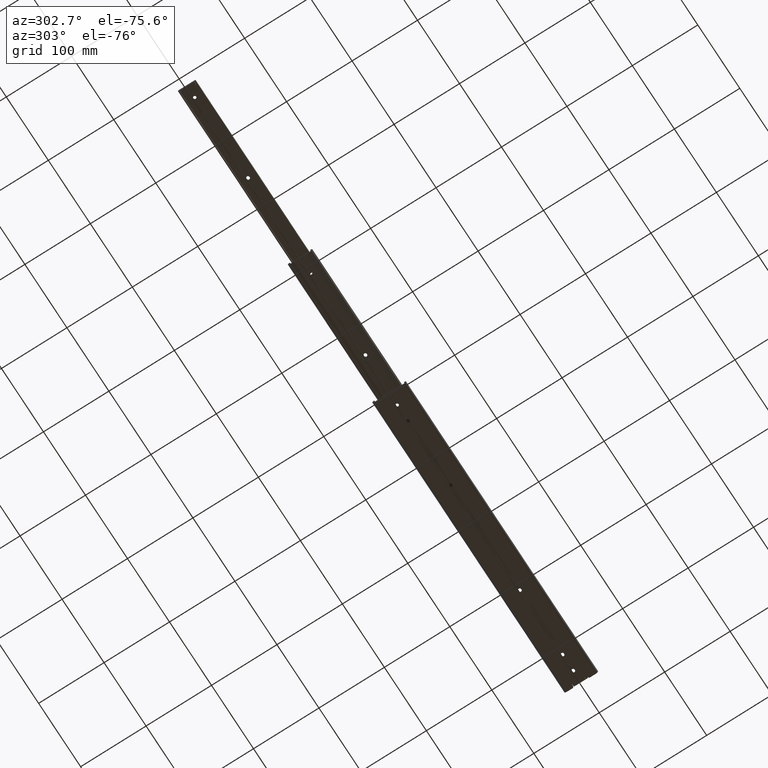
[diagram: clean part render]
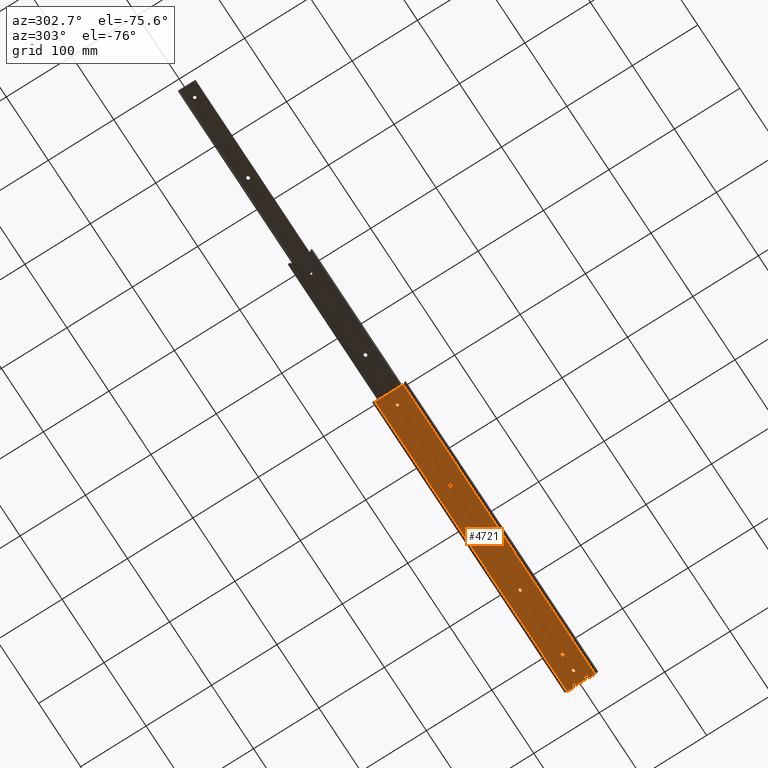
[diagram: same view with one face highlighted and labeled with its STEP entity id]
A machine part, auxiliary view. The second image highlights one B-rep face of the part: STEP entity #4721.
In plain terms, the highlighted planar face has unit normal (0, 0, 1).
Its self-contained STEP definition (entity closure, byte-faithful):
#17 = VERTEX_POINT ( 'NONE', #6637 ) ;
#88 = VECTOR ( 'NONE', #699, 1000.000000000000000 ) ;
#93 = CARTESIAN_POINT ( 'NONE',  ( 145.6999999999999900, -2.249999999999957800, 0.0000000000000000000 ) ) ;
#105 = ORIENTED_EDGE ( 'NONE', *, *, #4185, .F. ) ;
#106 = CARTESIAN_POINT ( 'NONE',  ( 456.3000000000000100, 7.349999999999999600, 0.0000000000000000000 ) ) ;
#126 = AXIS2_PLACEMENT_3D ( 'NONE', #6629, #2980, #7245 ) ;
#131 = CARTESIAN_POINT ( 'NONE',  ( 456.3000000000000100, 7.349999999999999600, 0.0000000000000000000 ) ) ;
#132 = CARTESIAN_POINT ( 'NONE',  ( 44.90000000000000600, 5.374174154884625500E-015, 0.0000000000000000000 ) ) ;
#143 = EDGE_CURVE ( 'NONE', #17, #3755, #4210, .T. ) ;
#161 = AXIS2_PLACEMENT_3D ( 'NONE', #7686, #4022, #448 ) ;
#204 = ORIENTED_EDGE ( 'NONE', *, *, #590, .T. ) ;
#217 = CIRCLE ( 'NONE', #7477, 2.249999999999974200 ) ;
#254 = CARTESIAN_POINT ( 'NONE',  ( 438.6000000000000800, 2.250000000000000000, 0.0000000000000000000 ) ) ;
#267 = DIRECTION ( 'NONE',  ( 1.000000000000000000, 0.0000000000000000000, 0.0000000000000000000 ) ) ;
#272 = ORIENTED_EDGE ( 'NONE', *, *, #7627, .T. ) ;
#300 = VERTEX_POINT ( 'NONE', #3301 ) ;
#314 = VERTEX_POINT ( 'NONE', #930 ) ;
#324 = CIRCLE ( 'NONE', #5216, 2.249999999999974200 ) ;
#448 = DIRECTION ( 'NONE',  ( 1.000000000000000000, 0.0000000000000000000, 0.0000000000000000000 ) ) ;
#452 = EDGE_CURVE ( 'NONE', #4040, #1603, #1012, .T. ) ;
#510 = ORIENTED_EDGE ( 'NONE', *, *, #6957, .T. ) ;
#524 = CIRCLE ( 'NONE', #3972, 2.249999999999998700 ) ;
#539 = CARTESIAN_POINT ( 'NONE',  ( 143.4499999999999900, 5.324886414075671300E-014, 0.0000000000000000000 ) ) ;
#552 = VECTOR ( 'NONE', #7526, 1000.000000000000000 ) ;
#572 = CARTESIAN_POINT ( 'NONE',  ( 453.7999999999999500, -7.349999999999999600, 0.0000000000000000000 ) ) ;
#590 = EDGE_CURVE ( 'NONE', #1445, #3558, #4867, .T. ) ;
#592 = VECTOR ( 'NONE', #7134, 1000.000000000000000 ) ;
#616 = EDGE_CURVE ( 'NONE', #5094, #6024, #4669, .T. ) ;
#629 = CIRCLE ( 'NONE', #6483, 2.249999999999974200 ) ;
#653 = EDGE_CURVE ( 'NONE', #1034, #7276, #6102, .T. ) ;
#681 = ORIENTED_EDGE ( 'NONE', *, *, #4697, .T. ) ;
#699 = DIRECTION ( 'NONE',  ( 1.000000000000000000, 0.0000000000000000000, 0.0000000000000000000 ) ) ;
#703 = CARTESIAN_POINT ( 'NONE',  ( 145.6999999999999900, -2.249999999999957800, 0.0000000000000000000 ) ) ;
#712 = CIRCLE ( 'NONE', #2782, 2.000000000000001800 ) ;
#726 = DIRECTION ( 'NONE',  ( 1.000000000000000000, 0.0000000000000000000, 0.0000000000000000000 ) ) ;
#731 = EDGE_CURVE ( 'NONE', #3316, #2362, #2509, .T. ) ;
#761 = DIRECTION ( 'NONE',  ( 1.000000000000000000, 0.0000000000000000000, 0.0000000000000000000 ) ) ;
#764 = EDGE_CURVE ( 'NONE', #2076, #1057, #3718, .T. ) ;
#854 = VERTEX_POINT ( 'NONE', #5523 ) ;
#888 = EDGE_CURVE ( 'NONE', #3684, #1445, #2959, .T. ) ;
#906 = AXIS2_PLACEMENT_3D ( 'NONE', #2619, #6864, #3212 ) ;
#923 = DIRECTION ( 'NONE',  ( 0.0000000000000000000, 0.0000000000000000000, 1.000000000000000000 ) ) ;
#930 = CARTESIAN_POINT ( 'NONE',  ( 455.1999999999999900, 11.35000000000000100, 0.0000000000000000000 ) ) ;
#935 = VERTEX_POINT ( 'NONE', #1729 ) ;
#938 = ORIENTED_EDGE ( 'NONE', *, *, #5026, .T. ) ;
#942 = ORIENTED_EDGE ( 'NONE', *, *, #1948, .F. ) ;
#944 = ORIENTED_EDGE ( 'NONE', *, *, #7637, .T. ) ;
#985 = ORIENTED_EDGE ( 'NONE', *, *, #653, .T. ) ;
#1011 = CARTESIAN_POINT ( 'NONE',  ( 457.1999999999999900, -13.35000000000000100, 0.0000000000000000000 ) ) ;
#1012 = CIRCLE ( 'NONE', #126, 2.249999999999998700 ) ;
#1024 = VERTEX_POINT ( 'NONE', #703 ) ;
#1034 = VERTEX_POINT ( 'NONE', #4708 ) ;
#1036 = CARTESIAN_POINT ( 'NONE',  ( 457.1999999999999900, 0.0000000000000000000, 0.0000000000000000000 ) ) ;
#1050 = DIRECTION ( 'NONE',  ( -1.000000000000000000, -0.0000000000000000000, -0.0000000000000000000 ) ) ;
#1057 = VERTEX_POINT ( 'NONE', #7614 ) ;
#1063 = EDGE_LOOP ( 'NONE', ( #2715, #5754, #3600, #1910, #7266 ) ) ;
#1088 = DIRECTION ( 'NONE',  ( 0.0000000000000000000, 0.0000000000000000000, 1.000000000000000000 ) ) ;
#1142 = ORIENTED_EDGE ( 'NONE', *, *, #1273, .T. ) ;
#1149 = EDGE_CURVE ( 'NONE', #6052, #6747, #2672, .T. ) ;
#1179 = VECTOR ( 'NONE', #2752, 1000.000000000000000 ) ;
#1183 = FACE_BOUND ( 'NONE', #5389, .T. ) ;
#1204 = DIRECTION ( 'NONE',  ( -1.000000000000000000, 1.020425574103983300E-015, 0.0000000000000000000 ) ) ;
#1229 = DIRECTION ( 'NONE',  ( 0.0000000000000000000, 0.0000000000000000000, 1.000000000000000000 ) ) ;
#1231 = VERTEX_POINT ( 'NONE', #1485 ) ;
#1236 = DIRECTION ( 'NONE',  ( -1.000000000000000000, -1.020425574103983300E-015, 0.0000000000000000000 ) ) ;
#1247 = ORIENTED_EDGE ( 'NONE', *, *, #2847, .T. ) ;
#1273 = EDGE_CURVE ( 'NONE', #3581, #2904, #6682, .T. ) ;
#1326 = ORIENTED_EDGE ( 'NONE', *, *, #888, .T. ) ;
#1360 = DIRECTION ( 'NONE',  ( 0.0000000000000000000, 1.000000000000000000, 0.0000000000000000000 ) ) ;
#1365 = CARTESIAN_POINT ( 'NONE',  ( 412.3999999999999200, 9.192473447950264600E-014, 0.0000000000000000000 ) ) ;
#1374 = CARTESIAN_POINT ( 'NONE',  ( 16.85000000000000500, 0.0000000000000000000, 0.0000000000000000000 ) ) ;
#1375 = ORIENTED_EDGE ( 'NONE', *, *, #6494, .F. ) ;
#1389 = DIRECTION ( 'NONE',  ( 0.0000000000000000000, 0.0000000000000000000, 1.000000000000000000 ) ) ;
#1408 = DIRECTION ( 'NONE',  ( -0.0000000000000000000, -0.0000000000000000000, -1.000000000000000000 ) ) ;
#1418 = VERTEX_POINT ( 'NONE', #6123 ) ;
#1442 = AXIS2_PLACEMENT_3D ( 'NONE', #132, #4310, #726 ) ;
#1445 = VERTEX_POINT ( 'NONE', #106 ) ;
#1464 = CARTESIAN_POINT ( 'NONE',  ( 453.7999999999999500, -9.350000000000001400, 0.0000000000000000000 ) ) ;
#1484 = DIRECTION ( 'NONE',  ( 1.000000000000000000, 2.551063935260000100E-016, 0.0000000000000000000 ) ) ;
#1485 = CARTESIAN_POINT ( 'NONE',  ( 0.0000000000000000000, -21.29985872422196600, 8.673617379884035500E-016 ) ) ;
#1486 = VECTOR ( 'NONE', #1360, 1000.000000000000000 ) ;
#1508 = CARTESIAN_POINT ( 'NONE',  ( 453.7999999999999500, 7.350000000000000500, 0.0000000000000000000 ) ) ;
#1516 = CARTESIAN_POINT ( 'NONE',  ( 44.09999999999999400, 5.325188282918731300E-015, 0.0000000000000000000 ) ) ;
#1546 = CARTESIAN_POINT ( 'NONE',  ( 308.5500000000000100, 1.136044972015125300E-013, 0.0000000000000000000 ) ) ;
#1547 = EDGE_CURVE ( 'NONE', #6128, #1034, #6378, .T. ) ;
#1555 = VECTOR ( 'NONE', #1204, 1000.000000000000000 ) ;
#1602 = VERTEX_POINT ( 'NONE', #2859 ) ;
#1603 = VERTEX_POINT ( 'NONE', #1374 ) ;
#1631 = VECTOR ( 'NONE', #1236, 1000.000000000000000 ) ;
#1635 = DIRECTION ( 'NONE',  ( 0.0000000000000000000, 1.000000000000000000, 0.0000000000000000000 ) ) ;
#1646 = CARTESIAN_POINT ( 'NONE',  ( 311.6000000000000800, -2.249999999999886300, 0.0000000000000000000 ) ) ;
#1672 = VECTOR ( 'NONE', #5525, 1000.000000000000000 ) ;
#1729 = CARTESIAN_POINT ( 'NONE',  ( 437.7999999999999500, -2.250000000000000000, 0.0000000000000000000 ) ) ;
#1793 = CARTESIAN_POINT ( 'NONE',  ( 44.90000000000000600, 2.250000000000000000, 0.0000000000000000000 ) ) ;
#1807 = CARTESIAN_POINT ( 'NONE',  ( 412.3999999999999200, -2.249999999999951200, 0.0000000000000000000 ) ) ;
#1825 = ORIENTED_EDGE ( 'NONE', *, *, #6622, .T. ) ;
#1903 = CARTESIAN_POINT ( 'NONE',  ( 453.7999999999999500, -9.350000000000001400, 0.0000000000000000000 ) ) ;
#1910 = ORIENTED_EDGE ( 'NONE', *, *, #3696, .T. ) ;
#1927 = DIRECTION ( 'NONE',  ( 0.0000000000000000000, 0.0000000000000000000, 1.000000000000000000 ) ) ;
#1928 = CARTESIAN_POINT ( 'NONE',  ( 413.1999999999999900, 9.197372035146854300E-014, 0.0000000000000000000 ) ) ;
#1929 = VERTEX_POINT ( 'NONE', #4058 ) ;
#1948 = EDGE_CURVE ( 'NONE', #6995, #3316, #5514, .T. ) ;
#1980 = CARTESIAN_POINT ( 'NONE',  ( 44.09999999999999400, 2.250000000000000000, 0.0000000000000000000 ) ) ;
#2040 = DIRECTION ( 'NONE',  ( 0.0000000000000000000, 0.0000000000000000000, 1.000000000000000000 ) ) ;
#2048 = DIRECTION ( 'NONE',  ( 0.0000000000000000000, 0.0000000000000000000, 1.000000000000000000 ) ) ;
#2053 = VECTOR ( 'NONE', #3611, 1000.000000000000000 ) ;
#2061 = DIRECTION ( 'NONE',  ( 1.000000000000000000, 0.0000000000000000000, 0.0000000000000000000 ) ) ;
#2076 = VERTEX_POINT ( 'NONE', #2783 ) ;
#2077 = VERTEX_POINT ( 'NONE', #3044 ) ;
#2082 = DIRECTION ( 'NONE',  ( 0.0000000000000000000, 0.0000000000000000000, 1.000000000000000000 ) ) ;
#2118 = CARTESIAN_POINT ( 'NONE',  ( 310.7999999999999500, 1.136044972015125300E-013, 0.0000000000000000000 ) ) ;
#2124 = DIRECTION ( 'NONE',  ( 1.000000000000000000, 0.0000000000000000000, 0.0000000000000000000 ) ) ;
#2201 = AXIS2_PLACEMENT_3D ( 'NONE', #1516, #5704, #2124 ) ;
#2240 = DIRECTION ( 'NONE',  ( 0.0000000000000000000, 0.0000000000000000000, 1.000000000000000000 ) ) ;
#2268 = CARTESIAN_POINT ( 'NONE',  ( 412.3999999999999200, -2.249999999999951200, 0.0000000000000000000 ) ) ;
#2286 = ORIENTED_EDGE ( 'NONE', *, *, #1547, .T. ) ;
#2304 = CARTESIAN_POINT ( 'NONE',  ( 451.7999999999999500, -9.350000000000001400, 0.0000000000000000000 ) ) ;
#2333 = LINE ( 'NONE', #6916, #552 ) ;
#2348 = CARTESIAN_POINT ( 'NONE',  ( 455.1999999999999900, -11.35000000000000100, 0.0000000000000000000 ) ) ;
#2362 = VERTEX_POINT ( 'NONE', #6581 ) ;
#2371 = VERTEX_POINT ( 'NONE', #7811 ) ;
#2374 = ORIENTED_EDGE ( 'NONE', *, *, #2639, .T. ) ;
#2376 = LINE ( 'NONE', #6520, #592 ) ;
#2377 = VERTEX_POINT ( 'NONE', #572 ) ;
#2391 = CARTESIAN_POINT ( 'NONE',  ( 456.3000000000000100, -7.349999999999999600, 0.0000000000000000000 ) ) ;
#2424 = CARTESIAN_POINT ( 'NONE',  ( 44.09999999999999400, 5.325188282918731300E-015, 0.0000000000000000000 ) ) ;
#2441 = AXIS2_PLACEMENT_3D ( 'NONE', #1903, #6106, #2485 ) ;
#2472 = ORIENTED_EDGE ( 'NONE', *, *, #2773, .T. ) ;
#2485 = DIRECTION ( 'NONE',  ( 1.000000000000000000, 0.0000000000000000000, 0.0000000000000000000 ) ) ;
#2509 = LINE ( 'NONE', #3644, #7150 ) ;
#2515 = DIRECTION ( 'NONE',  ( 1.000000000000000000, 0.0000000000000000000, 0.0000000000000000000 ) ) ;
#2619 = CARTESIAN_POINT ( 'NONE',  ( 311.6000000000000200, 1.136534830734784300E-013, 0.0000000000000000000 ) ) ;
#2639 = EDGE_CURVE ( 'NONE', #2911, #935, #3415, .T. ) ;
#2672 = LINE ( 'NONE', #1807, #4078 ) ;
#2687 = DIRECTION ( 'NONE',  ( 1.000000000000000000, 0.0000000000000000000, 0.0000000000000000000 ) ) ;
#2693 = CIRCLE ( 'NONE', #161, 2.000000000000001800 ) ;
#2715 = ORIENTED_EDGE ( 'NONE', *, *, #143, .T. ) ;
#2733 = EDGE_CURVE ( 'NONE', #1603, #4040, #524, .T. ) ;
#2751 = FACE_OUTER_BOUND ( 'NONE', #7553, .T. ) ;
#2752 = DIRECTION ( 'NONE',  ( 1.000000000000000000, 0.0000000000000000000, 0.0000000000000000000 ) ) ;
#2773 = EDGE_CURVE ( 'NONE', #3633, #3684, #4941, .T. ) ;
#2782 = AXIS2_PLACEMENT_3D ( 'NONE', #1464, #5648, #2061 ) ;
#2783 = CARTESIAN_POINT ( 'NONE',  ( 41.84999999999999400, 5.325188282918731300E-015, 0.0000000000000000000 ) ) ;
#2788 = CARTESIAN_POINT ( 'NONE',  ( 457.1999999999999900, -21.29985872422196600, 8.673617379884035500E-016 ) ) ;
#2847 = EDGE_CURVE ( 'NONE', #1057, #5862, #5975, .T. ) ;
#2859 = CARTESIAN_POINT ( 'NONE',  ( 310.7999999999999500, 2.250000000000082600, 0.0000000000000000000 ) ) ;
#2904 = VERTEX_POINT ( 'NONE', #4634 ) ;
#2911 = VERTEX_POINT ( 'NONE', #4008 ) ;
#2944 = FACE_BOUND ( 'NONE', #3573, .T. ) ;
#2959 = LINE ( 'NONE', #1508, #7818 ) ;
#2980 = DIRECTION ( 'NONE',  ( 0.0000000000000000000, 0.0000000000000000000, 1.000000000000000000 ) ) ;
#3018 = ORIENTED_EDGE ( 'NONE', *, *, #7380, .T. ) ;
#3021 = CARTESIAN_POINT ( 'NONE',  ( 451.7999999999999500, 9.350000000000001400, 0.0000000000000000000 ) ) ;
#3044 = CARTESIAN_POINT ( 'NONE',  ( 437.7999999999999500, 2.250000000000000000, 0.0000000000000000000 ) ) ;
#3046 = LINE ( 'NONE', #7646, #3421 ) ;
#3075 = EDGE_LOOP ( 'NONE', ( #985, #4973, #4733, #510, #2286 ) ) ;
#3134 = CIRCLE ( 'NONE', #3228, 2.249999999999974200 ) ;
#3147 = VECTOR ( 'NONE', #5371, 1000.000000000000000 ) ;
#3155 = AXIS2_PLACEMENT_3D ( 'NONE', #2424, #7136, #5921 ) ;
#3205 = LINE ( 'NONE', #4799, #1631 ) ;
#3207 = EDGE_CURVE ( 'NONE', #5862, #3581, #4934, .T. ) ;
#3212 = DIRECTION ( 'NONE',  ( 1.000000000000000000, 0.0000000000000000000, 0.0000000000000000000 ) ) ;
#3228 = AXIS2_PLACEMENT_3D ( 'NONE', #5511, #1927, #6130 ) ;
#3261 = VECTOR ( 'NONE', #1635, 1000.000000000000000 ) ;
#3298 = AXIS2_PLACEMENT_3D ( 'NONE', #5666, #2082, #6292 ) ;
#3299 = EDGE_LOOP ( 'NONE', ( #3857, #938, #4493, #6743, #944 ) ) ;
#3300 = EDGE_CURVE ( 'NONE', #6149, #6024, #7594, .T. ) ;
#3301 = CARTESIAN_POINT ( 'NONE',  ( 146.5000000000000300, -2.249999999999946700, 0.0000000000000000000 ) ) ;
#3305 = DIRECTION ( 'NONE',  ( 0.0000000000000000000, 0.0000000000000000000, 1.000000000000000000 ) ) ;
#3316 = VERTEX_POINT ( 'NONE', #5029 ) ;
#3356 = CARTESIAN_POINT ( 'NONE',  ( 453.7999999999999500, -11.35000000000000300, 0.0000000000000000000 ) ) ;
#3415 = CIRCLE ( 'NONE', #7413, 2.249999999999974200 ) ;
#3421 = VECTOR ( 'NONE', #3988, 1000.000000000000000 ) ;
#3424 = AXIS2_PLACEMENT_3D ( 'NONE', #5003, #1408, #5604 ) ;
#3436 = CARTESIAN_POINT ( 'NONE',  ( 437.7999999999999500, 4.660209697135381600E-014, 0.0000000000000000000 ) ) ;
#3490 = ORIENTED_EDGE ( 'NONE', *, *, #764, .T. ) ;
#3510 = DIRECTION ( 'NONE',  ( 0.0000000000000000000, 0.0000000000000000000, 1.000000000000000000 ) ) ;
#3528 = AXIS2_PLACEMENT_3D ( 'NONE', #1928, #6131, #2515 ) ;
#3558 = VERTEX_POINT ( 'NONE', #2391 ) ;
#3566 = DIRECTION ( 'NONE',  ( -1.000000000000000000, -0.0000000000000000000, -0.0000000000000000000 ) ) ;
#3573 = EDGE_LOOP ( 'NONE', ( #5736, #2374, #3018, #4944, #6543 ) ) ;
#3581 = VERTEX_POINT ( 'NONE', #1793 ) ;
#3600 = ORIENTED_EDGE ( 'NONE', *, *, #1149, .T. ) ;
#3611 = DIRECTION ( 'NONE',  ( 1.000000000000000000, 0.0000000000000000000, 0.0000000000000000000 ) ) ;
#3632 = LINE ( 'NONE', #6028, #2053 ) ;
#3633 = VERTEX_POINT ( 'NONE', #3021 ) ;
#3644 = CARTESIAN_POINT ( 'NONE',  ( 457.1999999999999900, 21.29985872422196600, 8.673617379884035500E-016 ) ) ;
#3684 = VERTEX_POINT ( 'NONE', #5492 ) ;
#3696 = EDGE_CURVE ( 'NONE', #6747, #1929, #6777, .T. ) ;
#3718 = CIRCLE ( 'NONE', #3155, 2.250000000000001800 ) ;
#3755 = VERTEX_POINT ( 'NONE', #7419 ) ;
#3857 = ORIENTED_EDGE ( 'NONE', *, *, #6126, .T. ) ;
#3915 = ORIENTED_EDGE ( 'NONE', *, *, #3300, .T. ) ;
#3923 = CARTESIAN_POINT ( 'NONE',  ( 457.1999999999999900, -21.29985872422196600, 8.673617379884035500E-016 ) ) ;
#3944 = VERTEX_POINT ( 'NONE', #1546 ) ;
#3972 = AXIS2_PLACEMENT_3D ( 'NONE', #5839, #2240, #6460 ) ;
#3988 = DIRECTION ( 'NONE',  ( 1.000000000000000000, 0.0000000000000000000, 0.0000000000000000000 ) ) ;
#3999 = EDGE_CURVE ( 'NONE', #1418, #6037, #3046, .T. ) ;
#4008 = CARTESIAN_POINT ( 'NONE',  ( 435.5500000000000100, 4.660209697135381600E-014, 0.0000000000000000000 ) ) ;
#4012 = CARTESIAN_POINT ( 'NONE',  ( 21.35000000000000100, 2.755455298081543800E-016, 0.0000000000000000000 ) ) ;
#4022 = DIRECTION ( 'NONE',  ( -0.0000000000000000000, -0.0000000000000000000, -1.000000000000000000 ) ) ;
#4038 = DIRECTION ( 'NONE',  ( 1.000000000000000000, 0.0000000000000000000, 0.0000000000000000000 ) ) ;
#4039 = EDGE_CURVE ( 'NONE', #2077, #2911, #4283, .T. ) ;
#4040 = VERTEX_POINT ( 'NONE', #4012 ) ;
#4058 = CARTESIAN_POINT ( 'NONE',  ( 413.2000000000000500, 2.250000000000048400, 0.0000000000000000000 ) ) ;
#4074 = VERTEX_POINT ( 'NONE', #2304 ) ;
#4078 = VECTOR ( 'NONE', #7082, 1000.000000000000000 ) ;
#4153 = ORIENTED_EDGE ( 'NONE', *, *, #7743, .T. ) ;
#4168 = FACE_BOUND ( 'NONE', #1063, .T. ) ;
#4185 = EDGE_CURVE ( 'NONE', #4074, #2377, #7810, .T. ) ;
#4193 = DIRECTION ( 'NONE',  ( 0.0000000000000000000, 1.000000000000000000, 0.0000000000000000000 ) ) ;
#4207 = EDGE_CURVE ( 'NONE', #7212, #5853, #3134, .T. ) ;
#4210 = CIRCLE ( 'NONE', #6884, 2.249999999999974200 ) ;
#4283 = CIRCLE ( 'NONE', #5014, 2.249999999999974200 ) ;
#4310 = DIRECTION ( 'NONE',  ( 0.0000000000000000000, 0.0000000000000000000, 1.000000000000000000 ) ) ;
#4336 = CARTESIAN_POINT ( 'NONE',  ( 145.6999999999999900, 5.324886414075671300E-014, 0.0000000000000000000 ) ) ;
#4359 = EDGE_CURVE ( 'NONE', #3755, #6052, #629, .T. ) ;
#4369 = FACE_BOUND ( 'NONE', #3299, .T. ) ;
#4474 = CARTESIAN_POINT ( 'NONE',  ( 44.90000000000000600, -2.249999999999994700, 0.0000000000000000000 ) ) ;
#4493 = ORIENTED_EDGE ( 'NONE', *, *, #3999, .T. ) ;
#4499 = VERTEX_POINT ( 'NONE', #3356 ) ;
#4520 = CARTESIAN_POINT ( 'NONE',  ( 145.6999999999999900, 5.324886414075671300E-014, 0.0000000000000000000 ) ) ;
#4552 = LINE ( 'NONE', #5398, #1555 ) ;
#4619 = CARTESIAN_POINT ( 'NONE',  ( 437.7999999999999500, 2.250000000000000000, 0.0000000000000000000 ) ) ;
#4634 = CARTESIAN_POINT ( 'NONE',  ( 44.09999999999997300, 2.250000000000000000, 0.0000000000000000000 ) ) ;
#4669 = LINE ( 'NONE', #4954, #1486 ) ;
#4675 = CARTESIAN_POINT ( 'NONE',  ( 453.7999999999999500, 9.350000000000001400, 0.0000000000000000000 ) ) ;
#4697 = EDGE_CURVE ( 'NONE', #314, #2371, #4552, .T. ) ;
#4708 = CARTESIAN_POINT ( 'NONE',  ( 145.6999999999999300, 2.250000000000041700, 0.0000000000000000000 ) ) ;
#4716 = CARTESIAN_POINT ( 'NONE',  ( 145.6999999999999900, 2.250000000000041700, 0.0000000000000000000 ) ) ;
#4721 = ADVANCED_FACE ( 'NONE', ( #2751, #2944, #4369, #1183, #7423, #5776, #4168 ), #7249, .F. ) ;
#4733 = ORIENTED_EDGE ( 'NONE', *, *, #7447, .T. ) ;
#4770 = LINE ( 'NONE', #4619, #7444 ) ;
#4799 = CARTESIAN_POINT ( 'NONE',  ( 457.2000000000000500, -11.35000000000000000, 0.0000000000000000000 ) ) ;
#4821 = CARTESIAN_POINT ( 'NONE',  ( 457.1999999999999900, 0.0000000000000000000, 0.0000000000000000000 ) ) ;
#4867 = LINE ( 'NONE', #131, #1672 ) ;
#4875 = LINE ( 'NONE', #93, #88 ) ;
#4934 = CIRCLE ( 'NONE', #1442, 2.250000000000001800 ) ;
#4941 = CIRCLE ( 'NONE', #6018, 2.000000000000001800 ) ;
#4944 = ORIENTED_EDGE ( 'NONE', *, *, #4207, .T. ) ;
#4954 = CARTESIAN_POINT ( 'NONE',  ( 457.1999999999999900, 0.0000000000000000000, 0.0000000000000000000 ) ) ;
#4972 = EDGE_CURVE ( 'NONE', #4499, #4074, #712, .T. ) ;
#4973 = ORIENTED_EDGE ( 'NONE', *, *, #5038, .T. ) ;
#4982 = CARTESIAN_POINT ( 'NONE',  ( 146.5000000000000300, 5.329785001272260300E-014, 0.0000000000000000000 ) ) ;
#5003 = CARTESIAN_POINT ( 'NONE',  ( 455.1999999999999900, -13.35000000000000100, 0.0000000000000000000 ) ) ;
#5014 = AXIS2_PLACEMENT_3D ( 'NONE', #3436, #7702, #4038 ) ;
#5026 = EDGE_CURVE ( 'NONE', #3944, #1418, #324, .T. ) ;
#5029 = CARTESIAN_POINT ( 'NONE',  ( 457.1999999999999900, 21.29985872422196600, 8.673617379884035500E-016 ) ) ;
#5038 = EDGE_CURVE ( 'NONE', #7276, #1024, #6754, .T. ) ;
#5094 = VERTEX_POINT ( 'NONE', #3923 ) ;
#5099 = CIRCLE ( 'NONE', #2201, 2.250000000000001800 ) ;
#5128 = DIRECTION ( 'NONE',  ( 1.000000000000000000, 0.0000000000000000000, 0.0000000000000000000 ) ) ;
#5216 = AXIS2_PLACEMENT_3D ( 'NONE', #2118, #6326, #2687 ) ;
#5226 = CARTESIAN_POINT ( 'NONE',  ( 0.0000000000000000000, 0.0000000000000000000, 0.0000000000000000000 ) ) ;
#5237 = VECTOR ( 'NONE', #6263, 1000.000000000000000 ) ;
#5282 = DIRECTION ( 'NONE',  ( 1.000000000000000000, 0.0000000000000000000, 0.0000000000000000000 ) ) ;
#5346 = ORIENTED_EDGE ( 'NONE', *, *, #731, .F. ) ;
#5362 = AXIS2_PLACEMENT_3D ( 'NONE', #4821, #1229, #5422 ) ;
#5371 = DIRECTION ( 'NONE',  ( -1.000000000000000000, -0.0000000000000000000, -0.0000000000000000000 ) ) ;
#5389 = EDGE_LOOP ( 'NONE', ( #5646, #3490, #1247, #6407, #1142 ) ) ;
#5398 = CARTESIAN_POINT ( 'NONE',  ( 457.2000000000000500, 11.35000000000000000, 0.0000000000000000000 ) ) ;
#5422 = DIRECTION ( 'NONE',  ( 1.000000000000000000, 0.0000000000000000000, -0.0000000000000000000 ) ) ;
#5492 = CARTESIAN_POINT ( 'NONE',  ( 453.7999999999999500, 7.349999999999999600, 0.0000000000000000000 ) ) ;
#5511 = CARTESIAN_POINT ( 'NONE',  ( 438.6000000000000200, 4.665108284331971200E-014, 0.0000000000000000000 ) ) ;
#5514 = LINE ( 'NONE', #1036, #7336 ) ;
#5523 = CARTESIAN_POINT ( 'NONE',  ( 311.6000000000000800, 2.250000000000082600, 0.0000000000000000000 ) ) ;
#5525 = DIRECTION ( 'NONE',  ( 0.0000000000000000000, -1.000000000000000000, 0.0000000000000000000 ) ) ;
#5559 = DIRECTION ( 'NONE',  ( 0.0000000000000000000, 0.0000000000000000000, 1.000000000000000000 ) ) ;
#5562 = VECTOR ( 'NONE', #1484, 1000.000000000000000 ) ;
#5585 = DIRECTION ( 'NONE',  ( 1.000000000000000000, 0.0000000000000000000, 0.0000000000000000000 ) ) ;
#5604 = DIRECTION ( 'NONE',  ( 1.000000000000000000, 0.0000000000000000000, 0.0000000000000000000 ) ) ;
#5616 = AXIS2_PLACEMENT_3D ( 'NONE', #4520, #923, #5128 ) ;
#5621 = CARTESIAN_POINT ( 'NONE',  ( 437.7999999999999500, 4.660209697135381600E-014, 0.0000000000000000000 ) ) ;
#5626 = EDGE_CURVE ( 'NONE', #6149, #4499, #3205, .T. ) ;
#5628 = CARTESIAN_POINT ( 'NONE',  ( 457.1999999999999900, 13.35000000000000100, 0.0000000000000000000 ) ) ;
#5633 = CARTESIAN_POINT ( 'NONE',  ( 412.3999999999999200, 9.192473447950264600E-014, 0.0000000000000000000 ) ) ;
#5637 = ORIENTED_EDGE ( 'NONE', *, *, #452, .T. ) ;
#5646 = ORIENTED_EDGE ( 'NONE', *, *, #5883, .T. ) ;
#5648 = DIRECTION ( 'NONE',  ( -0.0000000000000000000, -0.0000000000000000000, -1.000000000000000000 ) ) ;
#5662 = ORIENTED_EDGE ( 'NONE', *, *, #5626, .F. ) ;
#5666 = CARTESIAN_POINT ( 'NONE',  ( 453.7999999999999500, 9.350000000000001400, 0.0000000000000000000 ) ) ;
#5668 = CARTESIAN_POINT ( 'NONE',  ( 453.7999999999999500, -7.350000000000000500, 0.0000000000000000000 ) ) ;
#5704 = DIRECTION ( 'NONE',  ( 0.0000000000000000000, 0.0000000000000000000, 1.000000000000000000 ) ) ;
#5736 = ORIENTED_EDGE ( 'NONE', *, *, #4039, .T. ) ;
#5742 = LINE ( 'NONE', #5668, #5562 ) ;
#5754 = ORIENTED_EDGE ( 'NONE', *, *, #4359, .T. ) ;
#5763 = CARTESIAN_POINT ( 'NONE',  ( 44.09999999999999400, -2.250000000000000000, 0.0000000000000000000 ) ) ;
#5776 = FACE_BOUND ( 'NONE', #3075, .T. ) ;
#5777 = AXIS2_PLACEMENT_3D ( 'NONE', #4982, #1389, #5585 ) ;
#5815 = CIRCLE ( 'NONE', #5777, 2.250000000000001800 ) ;
#5839 = CARTESIAN_POINT ( 'NONE',  ( 19.10000000000000100, 0.0000000000000000000, 0.0000000000000000000 ) ) ;
#5853 = VERTEX_POINT ( 'NONE', #254 ) ;
#5862 = VERTEX_POINT ( 'NONE', #4474 ) ;
#5867 = CARTESIAN_POINT ( 'NONE',  ( 438.6000000000000800, -2.249999999999952900, 0.0000000000000000000 ) ) ;
#5883 = EDGE_CURVE ( 'NONE', #2904, #2076, #5099, .T. ) ;
#5913 = LINE ( 'NONE', #5226, #3261 ) ;
#5919 = CARTESIAN_POINT ( 'NONE',  ( 146.5000000000000300, 2.250000000000041700, 0.0000000000000000000 ) ) ;
#5921 = DIRECTION ( 'NONE',  ( 1.000000000000000000, 0.0000000000000000000, 0.0000000000000000000 ) ) ;
#5975 = LINE ( 'NONE', #5763, #1179 ) ;
#6018 = AXIS2_PLACEMENT_3D ( 'NONE', #4675, #1088, #5282 ) ;
#6024 = VERTEX_POINT ( 'NONE', #1011 ) ;
#6028 = CARTESIAN_POINT ( 'NONE',  ( 437.7999999999999500, -2.250000000000000000, 0.0000000000000000000 ) ) ;
#6037 = VERTEX_POINT ( 'NONE', #1646 ) ;
#6052 = VERTEX_POINT ( 'NONE', #2268 ) ;
#6100 = EDGE_CURVE ( 'NONE', #1929, #17, #2376, .T. ) ;
#6102 = CIRCLE ( 'NONE', #7401, 2.250000000000001800 ) ;
#6106 = DIRECTION ( 'NONE',  ( -0.0000000000000000000, -0.0000000000000000000, -1.000000000000000000 ) ) ;
#6123 = CARTESIAN_POINT ( 'NONE',  ( 310.7999999999999500, -2.249999999999917000, 0.0000000000000000000 ) ) ;
#6126 = EDGE_CURVE ( 'NONE', #1602, #3944, #217, .T. ) ;
#6128 = VERTEX_POINT ( 'NONE', #5919 ) ;
#6130 = DIRECTION ( 'NONE',  ( 1.000000000000000000, 0.0000000000000000000, 0.0000000000000000000 ) ) ;
#6131 = DIRECTION ( 'NONE',  ( 0.0000000000000000000, 0.0000000000000000000, 1.000000000000000000 ) ) ;
#6149 = VERTEX_POINT ( 'NONE', #2348 ) ;
#6193 = VECTOR ( 'NONE', #7045, 1000.000000000000000 ) ;
#6233 = ORIENTED_EDGE ( 'NONE', *, *, #2733, .T. ) ;
#6248 = DIRECTION ( 'NONE',  ( 1.000000000000000000, 0.0000000000000000000, 0.0000000000000000000 ) ) ;
#6262 = DIRECTION ( 'NONE',  ( 1.000000000000000000, 0.0000000000000000000, 0.0000000000000000000 ) ) ;
#6263 = DIRECTION ( 'NONE',  ( -1.000000000000000000, -0.0000000000000000000, -0.0000000000000000000 ) ) ;
#6292 = DIRECTION ( 'NONE',  ( 1.000000000000000000, 0.0000000000000000000, 0.0000000000000000000 ) ) ;
#6326 = DIRECTION ( 'NONE',  ( 0.0000000000000000000, 0.0000000000000000000, 1.000000000000000000 ) ) ;
#6378 = LINE ( 'NONE', #4716, #3147 ) ;
#6407 = ORIENTED_EDGE ( 'NONE', *, *, #3207, .T. ) ;
#6460 = DIRECTION ( 'NONE',  ( 1.000000000000000000, 0.0000000000000000000, 0.0000000000000000000 ) ) ;
#6483 = AXIS2_PLACEMENT_3D ( 'NONE', #5633, #2048, #6262 ) ;
#6494 = EDGE_CURVE ( 'NONE', #2377, #3558, #5742, .T. ) ;
#6520 = CARTESIAN_POINT ( 'NONE',  ( 412.3999999999999200, 2.250000000000048400, 0.0000000000000000000 ) ) ;
#6539 = CARTESIAN_POINT ( 'NONE',  ( 413.2000000000000500, -2.249999999999908100, 0.0000000000000000000 ) ) ;
#6543 = ORIENTED_EDGE ( 'NONE', *, *, #7786, .T. ) ;
#6581 = CARTESIAN_POINT ( 'NONE',  ( 0.0000000000000000000, 21.29985872422196600, 8.673617379884035500E-016 ) ) ;
#6622 = EDGE_CURVE ( 'NONE', #1231, #2362, #5913, .T. ) ;
#6629 = CARTESIAN_POINT ( 'NONE',  ( 19.10000000000000100, 0.0000000000000000000, 0.0000000000000000000 ) ) ;
#6637 = CARTESIAN_POINT ( 'NONE',  ( 412.3999999999999800, 2.250000000000048400, 0.0000000000000000000 ) ) ;
#6641 = EDGE_CURVE ( 'NONE', #6995, #314, #2693, .T. ) ;
#6656 = DIRECTION ( 'NONE',  ( 1.000000000000000000, -2.551063935260000100E-016, 0.0000000000000000000 ) ) ;
#6682 = LINE ( 'NONE', #1980, #5237 ) ;
#6743 = ORIENTED_EDGE ( 'NONE', *, *, #7592, .T. ) ;
#6747 = VERTEX_POINT ( 'NONE', #6539 ) ;
#6754 = CIRCLE ( 'NONE', #5616, 2.250000000000001800 ) ;
#6777 = CIRCLE ( 'NONE', #3528, 2.249999999999974200 ) ;
#6864 = DIRECTION ( 'NONE',  ( 0.0000000000000000000, 0.0000000000000000000, 1.000000000000000000 ) ) ;
#6884 = AXIS2_PLACEMENT_3D ( 'NONE', #1365, #5559, #761 ) ;
#6916 = CARTESIAN_POINT ( 'NONE',  ( 310.7999999999999500, 2.250000000000082600, 0.0000000000000000000 ) ) ;
#6957 = EDGE_CURVE ( 'NONE', #300, #6128, #5815, .T. ) ;
#6963 = CIRCLE ( 'NONE', #3298, 2.000000000000001800 ) ;
#6995 = VERTEX_POINT ( 'NONE', #5628 ) ;
#7045 = DIRECTION ( 'NONE',  ( -1.000000000000000000, -0.0000000000000000000, -0.0000000000000000000 ) ) ;
#7082 = DIRECTION ( 'NONE',  ( 1.000000000000000000, 0.0000000000000000000, 0.0000000000000000000 ) ) ;
#7134 = DIRECTION ( 'NONE',  ( -1.000000000000000000, -0.0000000000000000000, -0.0000000000000000000 ) ) ;
#7136 = DIRECTION ( 'NONE',  ( 0.0000000000000000000, 0.0000000000000000000, 1.000000000000000000 ) ) ;
#7150 = VECTOR ( 'NONE', #3566, 1000.000000000000000 ) ;
#7156 = CIRCLE ( 'NONE', #906, 2.249999999999974200 ) ;
#7161 = CARTESIAN_POINT ( 'NONE',  ( 310.7999999999999500, 1.136044972015125300E-013, 0.0000000000000000000 ) ) ;
#7212 = VERTEX_POINT ( 'NONE', #5867 ) ;
#7245 = DIRECTION ( 'NONE',  ( 1.000000000000000000, 0.0000000000000000000, 0.0000000000000000000 ) ) ;
#7249 = PLANE ( 'NONE',  #5362 ) ;
#7266 = ORIENTED_EDGE ( 'NONE', *, *, #6100, .T. ) ;
#7276 = VERTEX_POINT ( 'NONE', #539 ) ;
#7336 = VECTOR ( 'NONE', #4193, 1000.000000000000000 ) ;
#7380 = EDGE_CURVE ( 'NONE', #935, #7212, #3632, .T. ) ;
#7401 = AXIS2_PLACEMENT_3D ( 'NONE', #4336, #3305, #267 ) ;
#7413 = AXIS2_PLACEMENT_3D ( 'NONE', #5621, #2040, #6248 ) ;
#7419 = CARTESIAN_POINT ( 'NONE',  ( 410.1499999999999800, 9.192473447950264600E-014, 0.0000000000000000000 ) ) ;
#7423 = FACE_BOUND ( 'NONE', #7654, .T. ) ;
#7444 = VECTOR ( 'NONE', #1050, 1000.000000000000000 ) ;
#7447 = EDGE_CURVE ( 'NONE', #1024, #300, #4875, .T. ) ;
#7477 = AXIS2_PLACEMENT_3D ( 'NONE', #7161, #3510, #7775 ) ;
#7526 = DIRECTION ( 'NONE',  ( -1.000000000000000000, -0.0000000000000000000, -0.0000000000000000000 ) ) ;
#7553 = EDGE_LOOP ( 'NONE', ( #5662, #3915, #7655, #4153, #1825, #5346, #942, #7677, #681, #272, #2472, #1326, #204, #1375, #105, #7761 ) ) ;
#7592 = EDGE_CURVE ( 'NONE', #6037, #854, #7156, .T. ) ;
#7594 = CIRCLE ( 'NONE', #3424, 2.000000000000001800 ) ;
#7614 = CARTESIAN_POINT ( 'NONE',  ( 44.09999999999999400, -2.250000000000000000, 0.0000000000000000000 ) ) ;
#7627 = EDGE_CURVE ( 'NONE', #2371, #3633, #6963, .T. ) ;
#7637 = EDGE_CURVE ( 'NONE', #854, #1602, #2333, .T. ) ;
#7646 = CARTESIAN_POINT ( 'NONE',  ( 310.7999999999999500, -2.249999999999917000, 0.0000000000000000000 ) ) ;
#7654 = EDGE_LOOP ( 'NONE', ( #6233, #5637 ) ) ;
#7655 = ORIENTED_EDGE ( 'NONE', *, *, #616, .F. ) ;
#7677 = ORIENTED_EDGE ( 'NONE', *, *, #6641, .T. ) ;
#7686 = CARTESIAN_POINT ( 'NONE',  ( 455.1999999999999900, 13.35000000000000100, 0.0000000000000000000 ) ) ;
#7702 = DIRECTION ( 'NONE',  ( 0.0000000000000000000, 0.0000000000000000000, 1.000000000000000000 ) ) ;
#7743 = EDGE_CURVE ( 'NONE', #5094, #1231, #7823, .T. ) ;
#7761 = ORIENTED_EDGE ( 'NONE', *, *, #4972, .F. ) ;
#7775 = DIRECTION ( 'NONE',  ( 1.000000000000000000, 0.0000000000000000000, 0.0000000000000000000 ) ) ;
#7786 = EDGE_CURVE ( 'NONE', #5853, #2077, #4770, .T. ) ;
#7810 = CIRCLE ( 'NONE', #2441, 2.000000000000001800 ) ;
#7811 = CARTESIAN_POINT ( 'NONE',  ( 453.7999999999999500, 11.35000000000000300, 0.0000000000000000000 ) ) ;
#7818 = VECTOR ( 'NONE', #6656, 1000.000000000000000 ) ;
#7823 = LINE ( 'NONE', #2788, #6193 ) ;